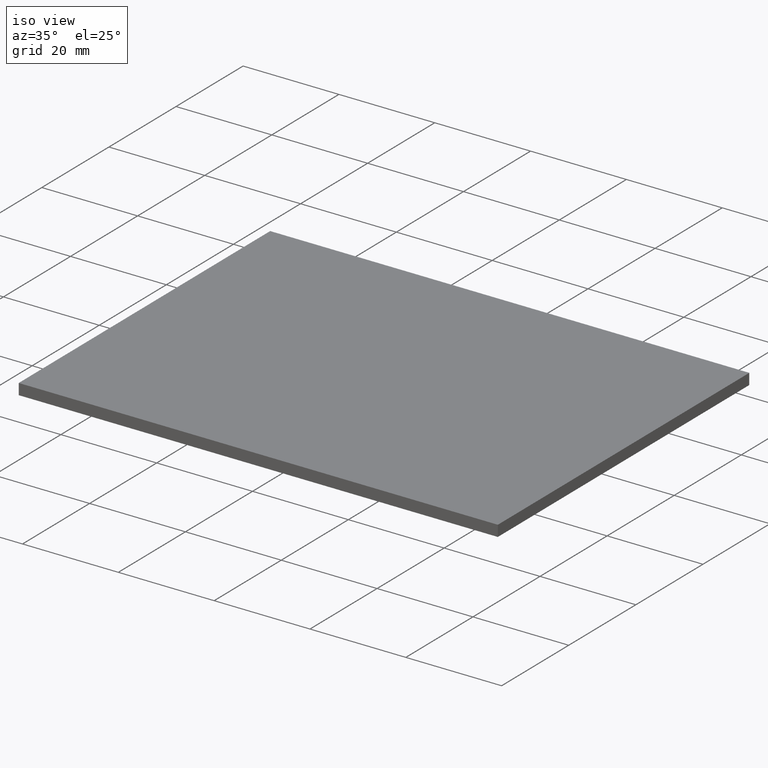
[diagram: clean part render]
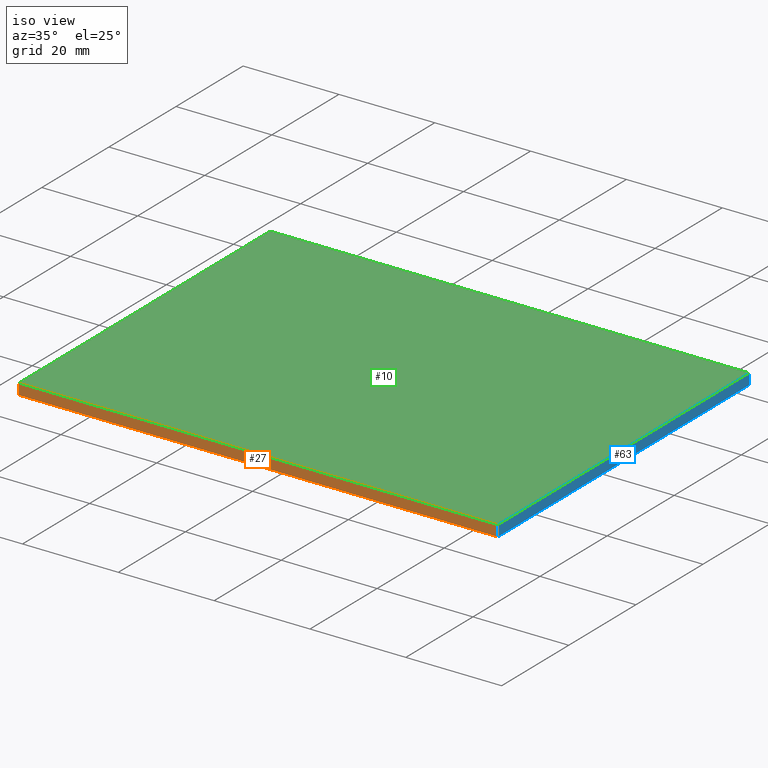
[diagram: same view with three faces highlighted in distinct colors, each labeled with its STEP entity id]
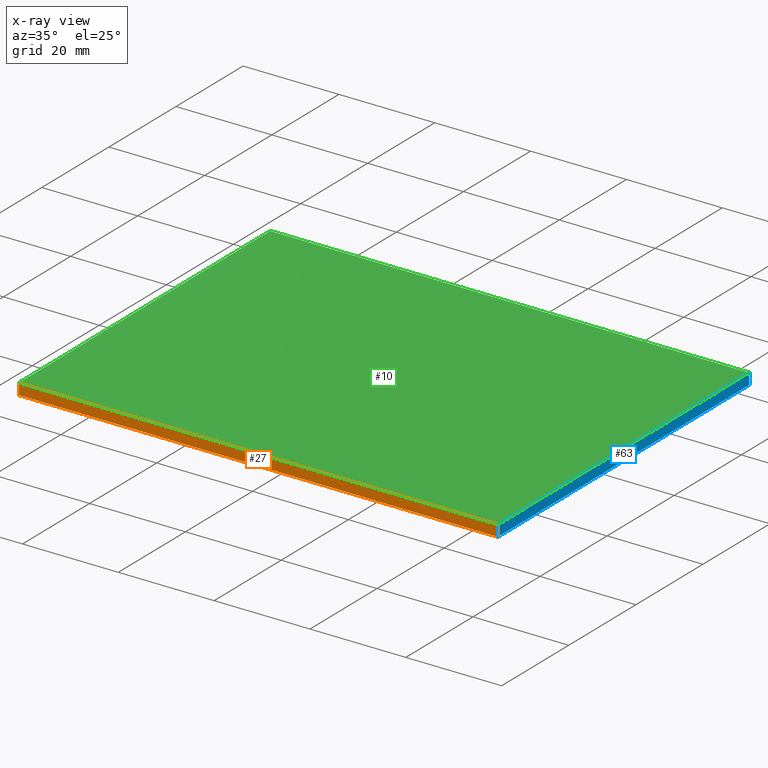
[diagram: x-ray of the same camera — body ghosted, the three highlighted faces saturated]
A machine part, iso view with three faces highlighted in distinct colors.
The next image is the same camera in x-ray (body ghosted, the three faces saturated) — at least one of them is partly hidden behind the body in this view.
Their STEP definitions:

[orange] entity #27 — the highlighted planar face has unit normal (0, 1, -0).
#5 = DIRECTION ( 'NONE',  ( 2.775639150277182100E-016, 1.000000000000000000, -0.0000000000000000000 ) ) ;
#13 = CARTESIAN_POINT ( 'NONE',  ( 267.2628910959036800, 85.62648366905317200, 0.0000000000000000000 ) ) ;
#15 = CARTESIAN_POINT ( 'NONE',  ( 167.2658305527232900, 85.62648366905320100, 2.299999999999999800 ) ) ;
#16 = DIRECTION ( 'NONE',  ( 1.000000000000000000, -2.775639150277182100E-016, 0.0000000000000000000 ) ) ;
#22 = ORIENTED_EDGE ( 'NONE', *, *, #157, .F. ) ;
#24 = EDGE_CURVE ( 'NONE', #33, #159, #72, .T. ) ;
#27 = ADVANCED_FACE ( 'NONE', ( #36 ), #111, .F. ) ;
#33 = VERTEX_POINT ( 'NONE', #144 ) ;
#34 = VECTOR ( 'NONE', #82, 1000.000000000000000 ) ;
#36 = FACE_OUTER_BOUND ( 'NONE', #78, .T. ) ;
#47 = DIRECTION ( 'NONE',  ( -0.0000000000000000000, -0.0000000000000000000, -1.000000000000000000 ) ) ;
#49 = CARTESIAN_POINT ( 'NONE',  ( 267.2628910959036800, 85.62648366905317200, 2.299999999999999800 ) ) ;
#50 = LINE ( 'NONE', #49, #182 ) ;
#57 = DIRECTION ( 'NONE',  ( -1.000000000000000000, 2.775639150277182100E-016, 0.0000000000000000000 ) ) ;
#72 = LINE ( 'NONE', #176, #34 ) ;
#78 = EDGE_LOOP ( 'NONE', ( #199, #22, #108, #156 ) ) ;
#82 = DIRECTION ( 'NONE',  ( -0.0000000000000000000, -0.0000000000000000000, -1.000000000000000000 ) ) ;
#96 = VECTOR ( 'NONE', #16, 1000.000000000000000 ) ;
#101 = VECTOR ( 'NONE', #134, 1000.000000000000000 ) ;
#106 = CARTESIAN_POINT ( 'NONE',  ( 167.2658305527232900, 85.62648366905320100, 0.0000000000000000000 ) ) ;
#108 = ORIENTED_EDGE ( 'NONE', *, *, #167, .F. ) ;
#111 = PLANE ( 'NONE',  #150 ) ;
#112 = CARTESIAN_POINT ( 'NONE',  ( 167.2658305527232900, 85.62648366905320100, 2.299999999999999800 ) ) ;
#114 = VERTEX_POINT ( 'NONE', #13 ) ;
#119 = CARTESIAN_POINT ( 'NONE',  ( 267.2628910959036800, 85.62648366905317200, 2.299999999999999800 ) ) ;
#134 = DIRECTION ( 'NONE',  ( 1.000000000000000000, -2.775639150277182100E-016, 0.0000000000000000000 ) ) ;
#144 = CARTESIAN_POINT ( 'NONE',  ( 167.2658305527232900, 85.62648366905320100, 2.299999999999999800 ) ) ;
#150 = AXIS2_PLACEMENT_3D ( 'NONE', #112, #5, #57 ) ;
#152 = LINE ( 'NONE', #15, #101 ) ;
#156 = ORIENTED_EDGE ( 'NONE', *, *, #24, .T. ) ;
#157 = EDGE_CURVE ( 'NONE', #185, #114, #50, .T. ) ;
#158 = EDGE_CURVE ( 'NONE', #159, #114, #202, .T. ) ;
#159 = VERTEX_POINT ( 'NONE', #164 ) ;
#164 = CARTESIAN_POINT ( 'NONE',  ( 167.2658305527232900, 85.62648366905320100, 0.0000000000000000000 ) ) ;
#167 = EDGE_CURVE ( 'NONE', #33, #185, #152, .T. ) ;
#176 = CARTESIAN_POINT ( 'NONE',  ( 167.2658305527232900, 85.62648366905320100, 2.299999999999999800 ) ) ;
#182 = VECTOR ( 'NONE', #47, 1000.000000000000000 ) ;
#185 = VERTEX_POINT ( 'NONE', #119 ) ;
#199 = ORIENTED_EDGE ( 'NONE', *, *, #158, .T. ) ;
#202 = LINE ( 'NONE', #106, #96 ) ;

[blue] entity #63 — the highlighted planar face has unit normal (-1, -0.0004, 0).
#1 = EDGE_LOOP ( 'NONE', ( #187, #54, #140, #80 ) ) ;
#8 = CARTESIAN_POINT ( 'NONE',  ( 267.2299678845673200, 160.6264836690531900, 0.0000000000000000000 ) ) ;
#13 = CARTESIAN_POINT ( 'NONE',  ( 267.2628910959036800, 85.62648366905317200, 0.0000000000000000000 ) ) ;
#21 = DIRECTION ( 'NONE',  ( -0.9999999036499832600, -0.0004389761088560449900, 0.0000000000000000000 ) ) ;
#23 = DIRECTION ( 'NONE',  ( -0.0004389761088560449900, 0.9999999036499833700, -0.0000000000000000000 ) ) ;
#32 = CARTESIAN_POINT ( 'NONE',  ( 267.2299678845673200, 160.6264836690531900, 2.299999999999999800 ) ) ;
#35 = EDGE_CURVE ( 'NONE', #185, #120, #98, .T. ) ;
#38 = FACE_OUTER_BOUND ( 'NONE', #1, .T. ) ;
#47 = DIRECTION ( 'NONE',  ( -0.0000000000000000000, -0.0000000000000000000, -1.000000000000000000 ) ) ;
#48 = EDGE_CURVE ( 'NONE', #120, #51, #179, .T. ) ;
#49 = CARTESIAN_POINT ( 'NONE',  ( 267.2628910959036800, 85.62648366905317200, 2.299999999999999800 ) ) ;
#50 = LINE ( 'NONE', #49, #182 ) ;
#51 = VERTEX_POINT ( 'NONE', #8 ) ;
#54 = ORIENTED_EDGE ( 'NONE', *, *, #48, .F. ) ;
#55 = DIRECTION ( 'NONE',  ( 0.0004389761088560449900, -0.9999999036499832600, 0.0000000000000000000 ) ) ;
#59 = CARTESIAN_POINT ( 'NONE',  ( 267.2299678845673200, 160.6264836690531900, 0.0000000000000000000 ) ) ;
#63 = ADVANCED_FACE ( 'NONE', ( #38 ), #191, .F. ) ;
#80 = ORIENTED_EDGE ( 'NONE', *, *, #157, .T. ) ;
#81 = CARTESIAN_POINT ( 'NONE',  ( 267.2299678845673200, 160.6264836690531900, 2.299999999999999800 ) ) ;
#98 = LINE ( 'NONE', #81, #196 ) ;
#102 = DIRECTION ( 'NONE',  ( -0.0000000000000000000, -0.0000000000000000000, -1.000000000000000000 ) ) ;
#110 = VECTOR ( 'NONE', #102, 1000.000000000000000 ) ;
#114 = VERTEX_POINT ( 'NONE', #13 ) ;
#119 = CARTESIAN_POINT ( 'NONE',  ( 267.2628910959036800, 85.62648366905317200, 2.299999999999999800 ) ) ;
#120 = VERTEX_POINT ( 'NONE', #32 ) ;
#133 = CARTESIAN_POINT ( 'NONE',  ( 267.2299678845673200, 160.6264836690531900, 2.299999999999999800 ) ) ;
#140 = ORIENTED_EDGE ( 'NONE', *, *, #35, .F. ) ;
#141 = EDGE_CURVE ( 'NONE', #114, #51, #171, .T. ) ;
#151 = DIRECTION ( 'NONE',  ( -0.0004389761088560449900, 0.9999999036499833700, -0.0000000000000000000 ) ) ;
#157 = EDGE_CURVE ( 'NONE', #185, #114, #50, .T. ) ;
#171 = LINE ( 'NONE', #59, #200 ) ;
#173 = AXIS2_PLACEMENT_3D ( 'NONE', #133, #21, #55 ) ;
#179 = LINE ( 'NONE', #188, #110 ) ;
#182 = VECTOR ( 'NONE', #47, 1000.000000000000000 ) ;
#185 = VERTEX_POINT ( 'NONE', #119 ) ;
#187 = ORIENTED_EDGE ( 'NONE', *, *, #141, .T. ) ;
#188 = CARTESIAN_POINT ( 'NONE',  ( 267.2299678845673200, 160.6264836690531900, 2.299999999999999800 ) ) ;
#191 = PLANE ( 'NONE',  #173 ) ;
#196 = VECTOR ( 'NONE', #23, 999.9999999999998900 ) ;
#200 = VECTOR ( 'NONE', #151, 999.9999999999998900 ) ;

[green] entity #10 — the highlighted planar face has unit normal (0, 0, 1).
#10 = ADVANCED_FACE ( 'NONE', ( #74 ), #131, .T. ) ;
#15 = CARTESIAN_POINT ( 'NONE',  ( 167.2658305527232900, 85.62648366905320100, 2.299999999999999800 ) ) ;
#18 = EDGE_CURVE ( 'NONE', #120, #100, #39, .T. ) ;
#20 = VECTOR ( 'NONE', #115, 999.9999999999998900 ) ;
#23 = DIRECTION ( 'NONE',  ( -0.0004389761088560449900, 0.9999999036499833700, -0.0000000000000000000 ) ) ;
#29 = CARTESIAN_POINT ( 'NONE',  ( 167.2299678845673700, 160.6264836690531600, 2.299999999999999800 ) ) ;
#32 = CARTESIAN_POINT ( 'NONE',  ( 267.2299678845673200, 160.6264836690531900, 2.299999999999999800 ) ) ;
#33 = VERTEX_POINT ( 'NONE', #144 ) ;
#35 = EDGE_CURVE ( 'NONE', #185, #120, #98, .T. ) ;
#39 = LINE ( 'NONE', #42, #155 ) ;
#42 = CARTESIAN_POINT ( 'NONE',  ( 167.2299678845673700, 160.6264836690531600, 2.299999999999999800 ) ) ;
#53 = ORIENTED_EDGE ( 'NONE', *, *, #18, .T. ) ;
#74 = FACE_OUTER_BOUND ( 'NONE', #174, .T. ) ;
#81 = CARTESIAN_POINT ( 'NONE',  ( 267.2299678845673200, 160.6264836690531900, 2.299999999999999800 ) ) ;
#86 = CARTESIAN_POINT ( 'NONE',  ( 167.2299678845673700, 160.6264836690531600, 2.299999999999999800 ) ) ;
#92 = LINE ( 'NONE', #29, #20 ) ;
#98 = LINE ( 'NONE', #81, #196 ) ;
#100 = VERTEX_POINT ( 'NONE', #86 ) ;
#101 = VECTOR ( 'NONE', #134, 1000.000000000000000 ) ;
#104 = DIRECTION ( 'NONE',  ( 0.0000000000000000000, 0.0000000000000000000, 1.000000000000000000 ) ) ;
#115 = DIRECTION ( 'NONE',  ( 0.0004781688540799851800, -0.9999998856772670500, 0.0000000000000000000 ) ) ;
#119 = CARTESIAN_POINT ( 'NONE',  ( 267.2628910959036800, 85.62648366905317200, 2.299999999999999800 ) ) ;
#120 = VERTEX_POINT ( 'NONE', #32 ) ;
#127 = CARTESIAN_POINT ( 'NONE',  ( 0.0000000000000000000, 0.0000000000000000000, 2.299999999999999800 ) ) ;
#131 = PLANE ( 'NONE',  #198 ) ;
#134 = DIRECTION ( 'NONE',  ( 1.000000000000000000, -2.775639150277182100E-016, 0.0000000000000000000 ) ) ;
#137 = ORIENTED_EDGE ( 'NONE', *, *, #145, .T. ) ;
#144 = CARTESIAN_POINT ( 'NONE',  ( 167.2658305527232900, 85.62648366905320100, 2.299999999999999800 ) ) ;
#145 = EDGE_CURVE ( 'NONE', #100, #33, #92, .T. ) ;
#147 = ORIENTED_EDGE ( 'NONE', *, *, #35, .T. ) ;
#152 = LINE ( 'NONE', #15, #101 ) ;
#155 = VECTOR ( 'NONE', #175, 1000.000000000000000 ) ;
#163 = DIRECTION ( 'NONE',  ( 1.000000000000000000, 0.0000000000000000000, -0.0000000000000000000 ) ) ;
#167 = EDGE_CURVE ( 'NONE', #33, #185, #152, .T. ) ;
#168 = ORIENTED_EDGE ( 'NONE', *, *, #167, .T. ) ;
#174 = EDGE_LOOP ( 'NONE', ( #137, #168, #147, #53 ) ) ;
#175 = DIRECTION ( 'NONE',  ( -1.000000000000000000, -2.775557561562892800E-016, -0.0000000000000000000 ) ) ;
#185 = VERTEX_POINT ( 'NONE', #119 ) ;
#196 = VECTOR ( 'NONE', #23, 999.9999999999998900 ) ;
#198 = AXIS2_PLACEMENT_3D ( 'NONE', #127, #104, #163 ) ;